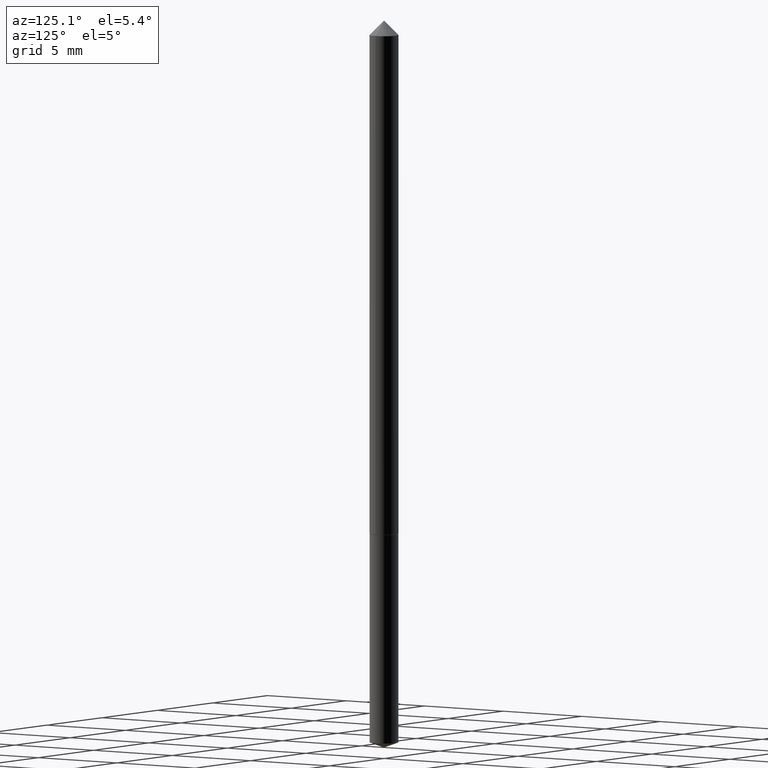
[diagram: clean part render]
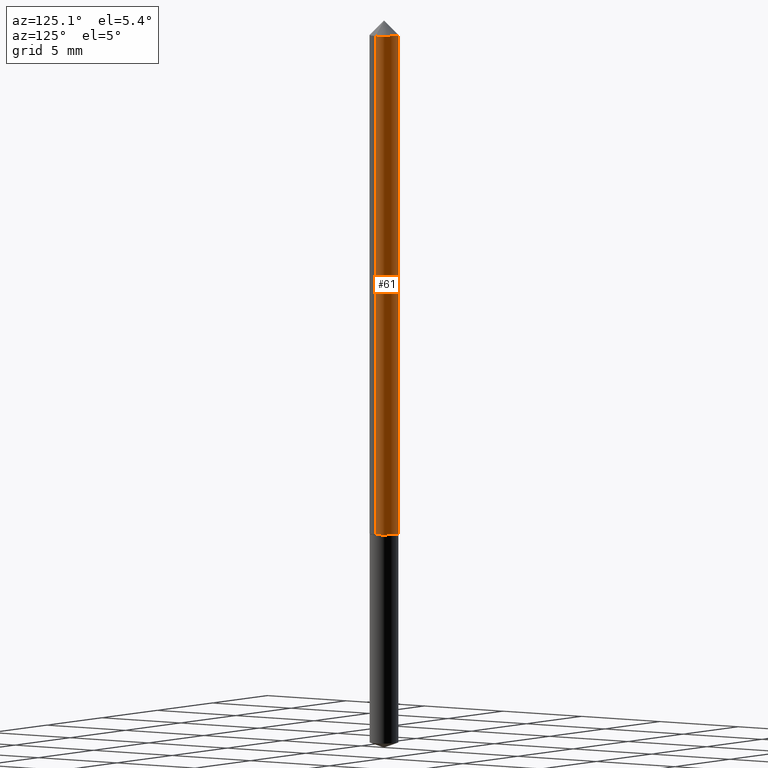
[diagram: same view with one face highlighted and labeled with its STEP entity id]
A machine part, auxiliary view. The second image highlights one B-rep face of the part: STEP entity #61.
In plain terms, the highlighted cylindrical surface (edge-blend (fillet) strip) has radius 0.7557 mm, axis along (-0, 0, 1).
Its self-contained STEP definition (entity closure, byte-faithful):
#2 = CARTESIAN_POINT ( 'NONE',  ( -0.02975000000000000214, -1.691907300948238426E-15, -0.03125000000000020817 ) ) ;
#7 = DIRECTION ( 'NONE',  ( -2.445468806185136597E-29, 3.491481338843145583E-15, 1.000000000000000000 ) ) ;
#38 = EDGE_CURVE ( 'NONE', #59, #51, #74, .T. ) ;
#39 = CARTESIAN_POINT ( 'NONE',  ( -0.02975000000000006459, 2.113864638886302642E-16, -1.463383189350837589E-30 ) ) ;
#51 = VERTEX_POINT ( 'NONE', #2 ) ;
#53 = ORIENTED_EDGE ( 'NONE', *, *, #96, .T. ) ;
#55 = ORIENTED_EDGE ( 'NONE', *, *, #179, .T. ) ;
#59 = VERTEX_POINT ( 'NONE', #94 ) ;
#61 = ADVANCED_FACE ( 'NONE', ( #188 ), #302, .T. ) ;
#63 = AXIS2_PLACEMENT_3D ( 'NONE', #275, #306, #139 ) ;
#65 = DIRECTION ( 'NONE',  ( 1.000000000000000000, -6.982962677686266711E-15, 4.876176775795935232E-29 ) ) ;
#71 = CARTESIAN_POINT ( 'NONE',  ( 2.589751465750059705E-29, -3.697478737834891287E-15, -1.059000000000000163 ) ) ;
#74 = CIRCLE ( 'NONE', #63, 0.02975000000000000214 ) ;
#80 = VECTOR ( 'NONE', #198, 39.37007874015748143 ) ;
#94 = CARTESIAN_POINT ( 'NONE',  ( 0.02975000000000000214, -3.168519315000154702E-16, -0.03125000000000020817 ) ) ;
#96 = EDGE_CURVE ( 'NONE', #239, #230, #307, .T. ) ;
#97 = LINE ( 'NONE', #39, #80 ) ;
#113 = LINE ( 'NONE', #316, #163 ) ;
#125 = CARTESIAN_POINT ( 'NONE',  ( 0.000000000000000000, 0.000000000000000000, 0.000000000000000000 ) ) ;
#134 = DIRECTION ( 'NONE',  ( 1.000000000000000000, -6.982962677686261977E-15, 0.000000000000000000 ) ) ;
#139 = DIRECTION ( 'NONE',  ( 1.000000000000000000, -6.982962677686267499E-15, 0.000000000000000000 ) ) ;
#163 = VECTOR ( 'NONE', #205, 39.37007874015748143 ) ;
#179 = EDGE_CURVE ( 'NONE', #230, #51, #97, .T. ) ;
#188 = FACE_OUTER_BOUND ( 'NONE', #197, .T. ) ;
#197 = EDGE_LOOP ( 'NONE', ( #53, #55, #291, #250 ) ) ;
#198 = DIRECTION ( 'NONE',  ( -2.445468806185136877E-29, 3.491481338843145188E-15, 1.000000000000000000 ) ) ;
#205 = DIRECTION ( 'NONE',  ( -2.445468806185136877E-29, 3.491481338843145188E-15, 1.000000000000000000 ) ) ;
#230 = VERTEX_POINT ( 'NONE', #345 ) ;
#236 = CARTESIAN_POINT ( 'NONE',  ( 0.02975000000000012704, -3.905221877496058889E-15, -1.059000000000000163 ) ) ;
#239 = VERTEX_POINT ( 'NONE', #236 ) ;
#246 = AXIS2_PLACEMENT_3D ( 'NONE', #71, #7, #134 ) ;
#250 = ORIENTED_EDGE ( 'NONE', *, *, #256, .F. ) ;
#252 = AXIS2_PLACEMENT_3D ( 'NONE', #125, #333, #65 ) ;
#256 = EDGE_CURVE ( 'NONE', #239, #59, #113, .T. ) ;
#275 = CARTESIAN_POINT ( 'NONE',  ( 7.642090019328602662E-31, -1.091087918388490267E-16, -0.03125000000000020817 ) ) ;
#291 = ORIENTED_EDGE ( 'NONE', *, *, #38, .F. ) ;
#302 = CYLINDRICAL_SURFACE ( 'NONE', #252, 0.02975000000000006459 ) ;
#306 = DIRECTION ( 'NONE',  ( -2.445468806185136597E-29, 3.491481338843145583E-15, 1.000000000000000000 ) ) ;
#307 = CIRCLE ( 'NONE', #246, 0.02975000000000012704 ) ;
#316 = CARTESIAN_POINT ( 'NONE',  ( 0.02975000000000006459, -2.077431396611668872E-16, 1.450662590799293904E-30 ) ) ;
#333 = DIRECTION ( 'NONE',  ( -2.445468806185136597E-29, 3.491481338843145583E-15, 1.000000000000000000 ) ) ;
#345 = CARTESIAN_POINT ( 'NONE',  ( -0.02975000000000012704, -3.486092273946260702E-15, -1.059000000000000163 ) ) ;